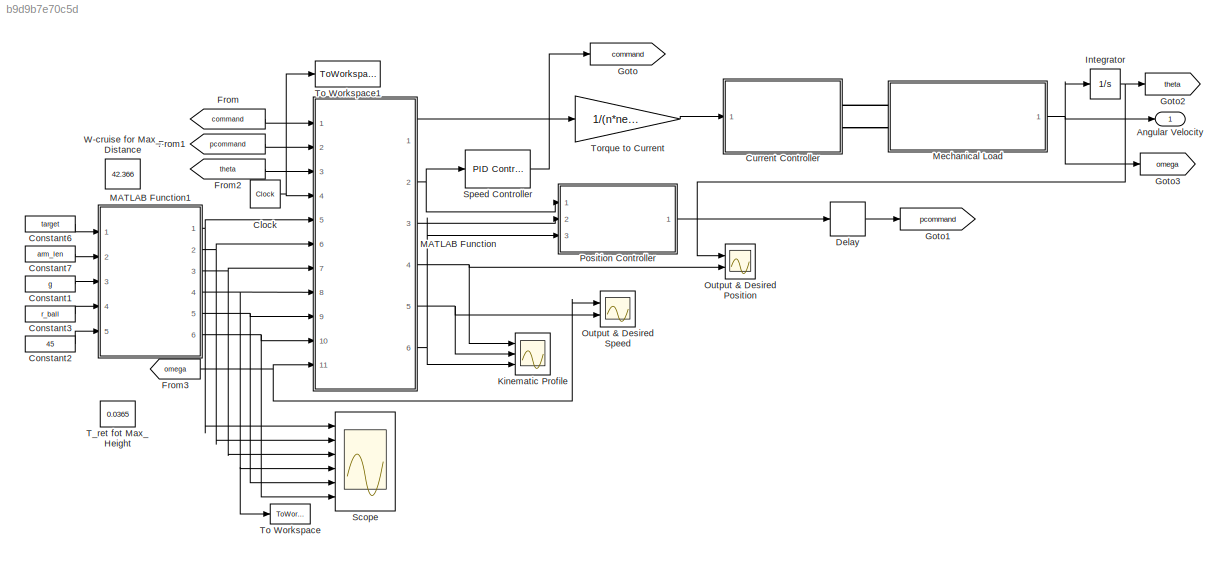
MODEL slx_b9d9b7e70c5d
KIND model
CONFIG AbsTol = auto
CONFIG EnableMultiTasking = off
CONFIG FixedStep = auto
CONFIG InitFcn = contact_stiffness = 2000;\ncontact_damping = 10;\n\n%% Parameters\n\n%------------------- Mechanical -------------------%\narm_len = 0.106;\nlaunch_ang = 45*(pi/180);\nth_start = 0;\nr_ball = 31.5/1000;\ng = -9.80665;\n\n%------------------- Electrical -------------------%\nR = 0.194;\nL = 0.097*1e-3;\nK_m = 1/24.48;\nV_max = 24;\nneta = 0.70;\nn = 6.5;\nf_s = 4000;\nNL_speed = 1200;\nR_speed = 1050;\nR_power = 240;\nNL...<+100ch>
CONFIG MaxStep = auto
CONFIG MinStep = auto
CONFIG RelTol = auto
CONFIG SampleTimeConstraint = Unconstrained
CONFIG SolverName = ode15s
CONFIG StartTime = 0.0
CONFIG StopTime = 0.09
WORKSPACE source: external: MATLAB File  (data not in archive)
BLOCK [Outport] Angular Velocity
BLOCK [Clock] Clock
BLOCK [Constant] Constant1
  Value = g
BLOCK [Constant] Constant2
  Value = 45
BLOCK [Constant] Constant3
  Value = r_ball
BLOCK [Constant] Constant6
  Value = target
BLOCK [Constant] Constant7
  Value = arm_len
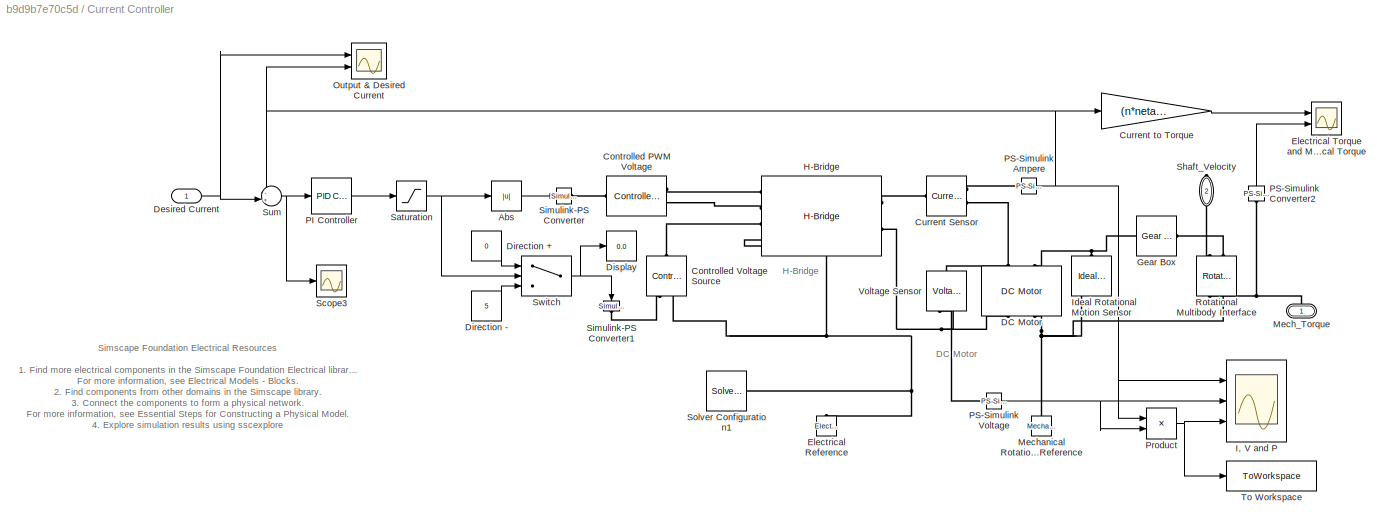
BLOCK [SubSystem] Current Controller
  NameLocation = top
  Ports = [1, 0, 0, 0, 0, 0, 2]
  RequestExecContextInheritance = off
BLOCK [Abs] Current Controller/Abs
  SaturateOnIntegerOverflow = off
BLOCK [Reference] Current Controller/Controlled PWM Voltage  REF=ee_lib/Integrated Circuits/Controlled PWM
Voltage
  Ports = [0, 0, 0, 0, 0, 1, 2]
  SourceBlock = ee_lib/Integrated Circuits/Controlled PWM\nVoltage
  SourceProductBaseCode = PS
  SourceType = Controlled PWM\nVoltage
BLOCK [Reference] Current Controller/Controlled Voltage Source  REF=fl_lib/Electrical/Electrical Sources/Controlled Voltage
Source
  NameLocation = right
  Ports = [0, 0, 0, 0, 0, 1, 2]
  SourceBlock = fl_lib/Electrical/Electrical Sources/Controlled Voltage\nSource
  SourceProductBaseCode = SS
  SourceType = Controlled Voltage\nSource
BLOCK [Reference] Current Controller/Current Sensor  REF=fl_lib/Electrical/Electrical Sensors/Current Sensor
  Ports = [0, 0, 0, 0, 0, 1, 2]
  SourceBlock = fl_lib/Electrical/Electrical Sensors/Current Sensor
  SourceProductBaseCode = SS
  SourceType = Current Sensor
BLOCK [Gain] Current Controller/Current to Torque
  Gain = (n*neta*K_m)
BLOCK [Reference] Current Controller/DC Motor  REF=ee_lib/Electromechanical/Brushed Motors/DC Motor
  Ports = [0, 0, 0, 0, 0, 2, 2]
  SourceBlock = ee_lib/Electromechanical/Brushed Motors/DC Motor
  SourceProductBaseCode = PS
  SourceType = DC Motor
BLOCK [Inport] Current Controller/Desired Current 
BLOCK [Constant] Current Controller/Direction +
  Value = 0
BLOCK [Constant] Current Controller/Direction -
  Value = 5
BLOCK [Display] Current Controller/Display
  Decimation = 1
  Ports = [1]
BLOCK [Reference] Current Controller/Electrical Reference  REF=fl_lib/Electrical/Electrical Elements/Electrical Reference
  Ports = [0, 0, 0, 0, 0, 1]
  SourceBlock = fl_lib/Electrical/Electrical Elements/Electrical Reference
  SourceProductBaseCode = SS
  SourceType = Electrical Reference
BLOCK [Scope] Current Controller/Electrical Torque and Mechanical Torque
  Floating = off
  NumInputPorts = 2
  Ports = [2]
  ScopeSpecificationString = Simulink.scopes.TimeScopeBlockCfg('CurrentConfiguration', extmgr.ConfigurationSet(extmgr.Configuration('Core','General UI',true),extmgr.Configuration('Core','Source UI',true),extmgr.Configuration('Sources','WiredSimulink',true,'DataLoggingVariableName','ScopeData4'),extmgr.Configuration('Visuals','Time Domain',true,'SerializedDisplays',{struct('MinYLimReal','-0.55886','MaxYLimReal','5.02972','YLab...<+1601ch>
BLOCK [Reference] Current Controller/Gear Box  REF=fl_lib/Mechanical/Mechanisms/Gear Box
  Ports = [0, 0, 0, 0, 0, 1, 1]
  SourceBlock = fl_lib/Mechanical/Mechanisms/Gear Box
  SourceProductBaseCode = SS
  SourceType = Gear Box
BLOCK [Reference] Current Controller/H-Bridge  REF=ee_lib/Semiconductors &
Converters/Converters/H-Bridge
  Ports = [0, 0, 0, 0, 0, 4, 2]
  SourceBlock = ee_lib/Semiconductors &\nConverters/Converters/H-Bridge
  SourceProductBaseCode = PS
  SourceType = H-Bridge
BLOCK [Scope] Current Controller/I, V and P
  Floating = off
  NumInputPorts = 3
  Ports = [3]
  ScopeSpecificationString = Simulink.scopes.TimeScopeBlockCfg('CurrentConfiguration', extmgr.ConfigurationSet(extmgr.Configuration('Core','General UI',true,'FigureColor',[0.313725490196078 0.313725490196078 0.313725490196078]),extmgr.Configuration('Core','Source UI',true),extmgr.Configuration('Sources','WiredSimulink',true,'DataLoggingVariableName','ScopeData3'),extmgr.Configuration('Visuals','Time Domain',true,'SerializedDi...<+2954ch>
BLOCK [Reference] Current Controller/Ideal Rotational Motion Sensor  REF=fl_lib/Mechanical/Mechanical Sensors/Ideal Rotational
Motion Sensor
  NameLocation = left
  Ports = [0, 0, 0, 0, 0, 1, 3]
  SourceBlock = fl_lib/Mechanical/Mechanical Sensors/Ideal Rotational\nMotion Sensor
  SourceProductBaseCode = SS
  SourceType = Ideal Rotational\nMotion Sensor
BLOCK [PMIOPort] Current Controller/Mech_Torque
  Side = Right
BLOCK [Reference] Current Controller/Mechanical Rotational Reference  REF=fl_lib/Mechanical/Rotational Elements/Mechanical
Rotational Reference
  Ports = [0, 0, 0, 0, 0, 1]
  SourceBlock = fl_lib/Mechanical/Rotational Elements/Mechanical\nRotational Reference
  SourceProductBaseCode = SS
  SourceType = Mechanical\nRotational Reference
BLOCK [Scope] Current Controller/Output & Desired Current
  Floating = off
  NumInputPorts = 2
  Ports = [2]
  ScopeSpecificationString = Simulink.scopes.TimeScopeBlockCfg('CurrentConfiguration', extmgr.ConfigurationSet(extmgr.Configuration('Core','General UI',true),extmgr.Configuration('Core','Source UI',true),extmgr.Configuration('Sources','WiredSimulink',true,'DataLoggingVariableName','ScopeData1'),extmgr.Configuration('Visuals','Time Domain',true,'SerializedDisplays',{struct('MinYLimReal','-240218.67911','MaxYLimReal','330321.26...<+2874ch>
BLOCK [Reference] Current Controller/PI Controller  REF=pid_lib/PID Controller
  Ports = [1, 1]
  SourceBlock = pid_lib/PID Controller
  SourceProductBaseCode = SL
  SourceType = PID 1dof
BLOCK [Reference] Current Controller/PS-Simulink Ampere  REF=nesl_utility/PS-Simulink
Converter
  Ports = [0, 1, 0, 0, 0, 1]
  SourceBlock = nesl_utility/PS-Simulink\nConverter
  SourceProductBaseCode = PW,SS
  SourceType = PS-Simulink\nConverter
BLOCK [Reference] Current Controller/PS-Simulink Converter2  REF=nesl_utility/PS-Simulink
Converter
  NameLocation = right
  Ports = [0, 1, 0, 0, 0, 1]
  SourceBlock = nesl_utility/PS-Simulink\nConverter
  SourceProductBaseCode = PW,SS
  SourceType = PS-Simulink\nConverter
BLOCK [Reference] Current Controller/PS-Simulink Voltage  REF=nesl_utility/PS-Simulink
Converter
  Ports = [0, 1, 0, 0, 0, 1]
  SourceBlock = nesl_utility/PS-Simulink\nConverter
  SourceProductBaseCode = PW,SS
  SourceType = PS-Simulink\nConverter
BLOCK [Product] Current Controller/Product
  Ports = [2, 1]
BLOCK [Reference] Current Controller/Rotational Multibody Interface  REF=fl_lib/Mechanical/Multibody Interfaces/Rotational Multibody
Interface
  NameLocation = left
  Ports = [0, 0, 0, 0, 0, 2, 2]
  SourceBlock = fl_lib/Mechanical/Multibody Interfaces/Rotational Multibody\nInterface
  SourceProductBaseCode = SS
  SourceType = Rotational Multibody\nInterface
BLOCK [Saturate] Current Controller/Saturation
  LowerLimit = -V_max
  UpperLimit = V_max
BLOCK [Scope] Current Controller/Scope3
  Floating = off
  NumInputPorts = 1
  Ports = [1]
  ScopeSpecificationString = Simulink.scopes.TimeScopeBlockCfg('CurrentConfiguration', extmgr.ConfigurationSet(extmgr.Configuration('Core','General UI',true),extmgr.Configuration('Core','Source UI',true),extmgr.Configuration('Sources','WiredSimulink',true,'DataLoggingVariableName','ScopeData3'),extmgr.Configuration('Visuals','Time Domain',true,'SerializedDisplays',{struct('MinYLimReal','-2.47708','MaxYLimReal','2.21524','YLab...<+1406ch>
BLOCK [PMIOPort] Current Controller/Shaft_Velocity
  NameLocation = top
  Port = 2
  Side = Right
BLOCK [Reference] Current Controller/Simulink-PS Converter  REF=nesl_utility/Simulink-PS
Converter
  Ports = [1, 0, 0, 0, 0, 0, 1]
  SourceBlock = nesl_utility/Simulink-PS\nConverter
  SourceProductBaseCode = PW,SS
  SourceType = Simulink-PS\nConverter
BLOCK [Reference] Current Controller/Simulink-PS Converter1  REF=nesl_utility/Simulink-PS
Converter
  NameLocation = left
  Ports = [1, 0, 0, 0, 0, 0, 1]
  SourceBlock = nesl_utility/Simulink-PS\nConverter
  SourceProductBaseCode = PW,SS
  SourceType = Simulink-PS\nConverter
BLOCK [Reference] Current Controller/Solver Configuration1  REF=nesl_utility/Solver
Configuration
  Ports = [0, 0, 0, 0, 0, 0, 1]
  SourceBlock = nesl_utility/Solver\nConfiguration
  SourceProductBaseCode = PW,SS
  SourceType = Solver\nConfiguration
BLOCK [Sum] Current Controller/Sum
  Inputs = -+|
  NameLocation = top
  Ports = [2, 1]
BLOCK [Switch] Current Controller/Switch
  InputSameDT = off
  SaturateOnIntegerOverflow = off
BLOCK [ToWorkspace] Current Controller/To Workspace
  FixptAsFi = on
  MaxDataPoints = inf
  Ports = [1]
  SampleTime = -1
  VariableName = Power
BLOCK [Reference] Current Controller/Voltage Sensor  REF=fl_lib/Electrical/Electrical Sensors/Voltage Sensor
  NameLocation = left
  Ports = [0, 0, 0, 0, 0, 1, 2]
  SourceBlock = fl_lib/Electrical/Electrical Sensors/Voltage Sensor
  SourceProductBaseCode = SS
  SourceType = Voltage Sensor
BLOCK [Delay] Delay
  DelayLength = 1
  InputPortMap = u0
  Ports = [1, 1]
  SampleTime = 1/(1*f_s)
BLOCK [From] From
  GotoTag = command
BLOCK [From] From1
  GotoTag = pcommand
BLOCK [From] From2
  GotoTag = theta
BLOCK [From] From3
  GotoTag = omega
BLOCK [Goto] Goto
  GotoTag = command
BLOCK [Goto] Goto1
  GotoTag = pcommand
BLOCK [Goto] Goto2
  GotoTag = theta
BLOCK [Goto] Goto3
  GotoTag = omega
BLOCK [Integrator] Integrator
  Ports = [1, 1]
BLOCK [Scope] Kinematic Profile
  Floating = off
  NumInputPorts = 3
  Ports = [3]
  ScopeSpecificationString = Simulink.scopes.TimeScopeBlockCfg('CurrentConfiguration', extmgr.ConfigurationSet(extmgr.Configuration('Core','General UI',true),extmgr.Configuration('Core','Source UI',true),extmgr.Configuration('Sources','WiredSimulink',true,'DataLoggingVariableName','ScopeData5'),extmgr.Configuration('Visuals','Time Domain',true,'SerializedDisplays',{struct('MinYLimReal','-0.35883','MaxYLimReal','3.22947','YLab...<+4860ch>
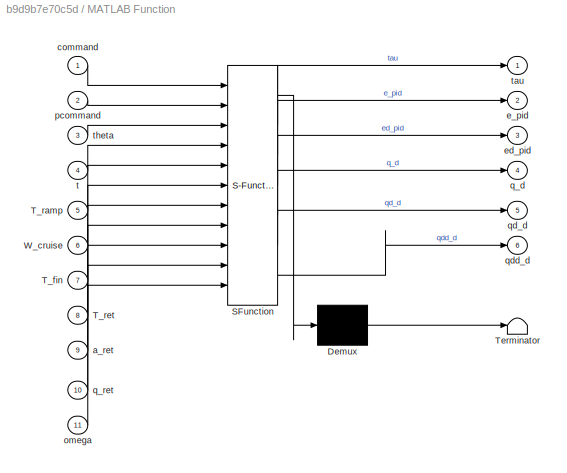
BLOCK [SubSystem] MATLAB Function
  ErrorFcn = Stateflow.Translate.translate
  PermitHierarchicalResolution = ExplicitOnly
  Ports = [11, 6]
  RequestExecContextInheritance = off
  SFBlockType = MATLAB Function
  TreatAsAtomicUnit = on
BLOCK [Demux] MATLAB Function/ Demux 
  Outputs = 1
  Ports = [1, 1]
BLOCK [S-Function] MATLAB Function/ SFunction 
  EnableBusSupport = on
  FunctionName = sf_sfun
  PortCounts = [11 7]
  Ports = [11, 7]
  SFcnIsStateOwnerBlock = off
  SFunctionDeploymentMode = off
  Tag = Stateflow S-Function 2
BLOCK [Terminator] MATLAB Function/ Terminator 
BLOCK [Inport] MATLAB Function/T_fin
  Port = 7
BLOCK [Inport] MATLAB Function/T_ramp
  Port = 5
BLOCK [Inport] MATLAB Function/T_ret
  Port = 8
BLOCK [Inport] MATLAB Function/W_cruise
  Port = 6
BLOCK [Inport] MATLAB Function/a_ret
  Port = 9
BLOCK [Inport] MATLAB Function/command
BLOCK [Outport] MATLAB Function/e_pid
  Port = 2
BLOCK [Outport] MATLAB Function/ed_pid
  Port = 3
BLOCK [Inport] MATLAB Function/omega
  Port = 11
BLOCK [Inport] MATLAB Function/pcommand
  Port = 2
BLOCK [Outport] MATLAB Function/q_d
  Port = 4
BLOCK [Inport] MATLAB Function/q_ret
  Port = 10
BLOCK [Outport] MATLAB Function/qd_d
  Port = 5
BLOCK [Outport] MATLAB Function/qdd_d
  Port = 6
BLOCK [Inport] MATLAB Function/t
  Port = 4
BLOCK [Outport] MATLAB Function/tau
BLOCK [Inport] MATLAB Function/theta
  Port = 3
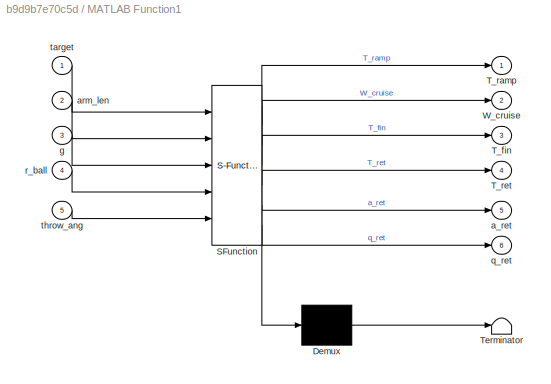
BLOCK [SubSystem] MATLAB Function1
  ErrorFcn = Stateflow.Translate.translate
  PermitHierarchicalResolution = ExplicitOnly
  Ports = [5, 6]
  RequestExecContextInheritance = off
  SFBlockType = MATLAB Function
  TreatAsAtomicUnit = on
BLOCK [Demux] MATLAB Function1/ Demux 
  Outputs = 1
  Ports = [1, 1]
BLOCK [S-Function] MATLAB Function1/ SFunction 
  EnableBusSupport = on
  FunctionName = sf_sfun
  PortCounts = [5 7]
  Ports = [5, 7]
  SFcnIsStateOwnerBlock = off
  SFunctionDeploymentMode = off
  Tag = Stateflow S-Function 1
BLOCK [Terminator] MATLAB Function1/ Terminator 
BLOCK [Outport] MATLAB Function1/T_fin
  Port = 3
BLOCK [Outport] MATLAB Function1/T_ramp
BLOCK [Outport] MATLAB Function1/T_ret
  Port = 4
BLOCK [Outport] MATLAB Function1/W_cruise
  Port = 2
BLOCK [Outport] MATLAB Function1/a_ret
  Port = 5
BLOCK [Inport] MATLAB Function1/arm_len
  Port = 2
BLOCK [Inport] MATLAB Function1/g
  Port = 3
BLOCK [Outport] MATLAB Function1/q_ret
  Port = 6
BLOCK [Inport] MATLAB Function1/r_ball
  Port = 4
BLOCK [Inport] MATLAB Function1/target
BLOCK [Inport] MATLAB Function1/throw_ang
  Port = 5
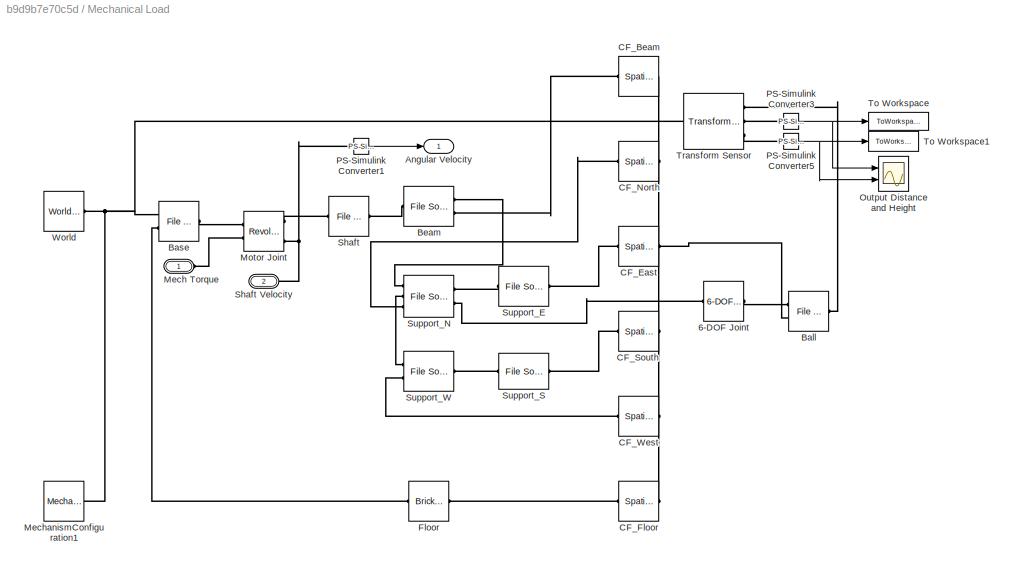
BLOCK [SubSystem] Mechanical Load
  NameLocation = top
  Ports = [0, 1, 0, 0, 0, 2]
  RequestExecContextInheritance = off
BLOCK [Reference] Mechanical Load/6-DOF Joint  REF=sm_lib/Joints/6-DOF Joint
  Ports = [0, 0, 0, 0, 0, 1, 1]
  SourceBlock = sm_lib/Joints/6-DOF Joint
  SourceProductBaseCode = MS
  SourceType = 6-DOF Joint
BLOCK [Outport] Mechanical Load/Angular Velocity
BLOCK [Reference] Mechanical Load/Ball  REF=sm_lib/Body Elements/File Solid
  Ports = [0, 0, 0, 0, 0, 2, 1]
  SourceBlock = sm_lib/Body Elements/File Solid
  SourceProductBaseCode = MS
  SourceType = File Solid
BLOCK [Reference] Mechanical Load/Base  REF=sm_lib/Body Elements/File Solid
  Ports = [0, 0, 0, 0, 0, 2, 1]
  SourceBlock = sm_lib/Body Elements/File Solid
  SourceProductBaseCode = MS
  SourceType = File Solid
BLOCK [Reference] Mechanical Load/Beam  REF=sm_lib/Body Elements/File Solid
  Ports = [0, 0, 0, 0, 0, 2, 1]
  SourceBlock = sm_lib/Body Elements/File Solid
  SourceProductBaseCode = MS
  SourceType = File Solid
BLOCK [Reference] Mechanical Load/CF_Beam  REF=sm_lib/Forces and
Torques/Spatial
Contact Force
  Ports = [0, 0, 0, 0, 0, 1, 1]
  SourceBlock = sm_lib/Forces and\nTorques/Spatial\nContact Force
  SourceProductBaseCode = MS
  SourceType = Spatial\nContact Force
BLOCK [Reference] Mechanical Load/CF_East  REF=sm_lib/Forces and
Torques/Spatial
Contact Force
  Ports = [0, 0, 0, 0, 0, 1, 1]
  SourceBlock = sm_lib/Forces and\nTorques/Spatial\nContact Force
  SourceProductBaseCode = MS
  SourceType = Spatial\nContact Force
BLOCK [Reference] Mechanical Load/CF_Floor  REF=sm_lib/Forces and
Torques/Spatial
Contact Force
  Ports = [0, 0, 0, 0, 0, 1, 1]
  SourceBlock = sm_lib/Forces and\nTorques/Spatial\nContact Force
  SourceProductBaseCode = MS
  SourceType = Spatial\nContact Force
BLOCK [Reference] Mechanical Load/CF_North  REF=sm_lib/Forces and
Torques/Spatial
Contact Force
  Ports = [0, 0, 0, 0, 0, 1, 1]
  SourceBlock = sm_lib/Forces and\nTorques/Spatial\nContact Force
  SourceProductBaseCode = MS
  SourceType = Spatial\nContact Force
BLOCK [Reference] Mechanical Load/CF_South  REF=sm_lib/Forces and
Torques/Spatial
Contact Force
  Ports = [0, 0, 0, 0, 0, 1, 1]
  SourceBlock = sm_lib/Forces and\nTorques/Spatial\nContact Force
  SourceProductBaseCode = MS
  SourceType = Spatial\nContact Force
BLOCK [Reference] Mechanical Load/CF_West  REF=sm_lib/Forces and
Torques/Spatial
Contact Force
  Ports = [0, 0, 0, 0, 0, 1, 1]
  SourceBlock = sm_lib/Forces and\nTorques/Spatial\nContact Force
  SourceProductBaseCode = MS
  SourceType = Spatial\nContact Force
BLOCK [Reference] Mechanical Load/Floor  REF=sm_lib/Body Elements/Brick Solid
  Ports = [0, 0, 0, 0, 0, 1, 1]
  SourceBlock = sm_lib/Body Elements/Brick Solid
  SourceProductBaseCode = MS
  SourceType = Brick Solid
BLOCK [PMIOPort] Mechanical Load/Mech Torque
  Side = Left
BLOCK [Reference] Mechanical Load/MechanismConfiguration1  REF=sm_lib/Utilities/Mechanism
Configuration
  Ports = [0, 0, 0, 0, 0, 0, 1]
  SourceBlock = sm_lib/Utilities/Mechanism\nConfiguration
  SourceProductBaseCode = MS
  SourceType = Mechanism\nConfiguration
BLOCK [Reference] Mechanical Load/Motor Joint  REF=sm_lib/Joints/Revolute Joint
  Ports = [0, 0, 0, 0, 0, 2, 3]
  SourceBlock = sm_lib/Joints/Revolute Joint
  SourceProductBaseCode = MS
  SourceType = Revolute Joint
BLOCK [Scope] Mechanical Load/Output Distance and Height
  Floating = off
  NumInputPorts = 2
  Ports = [2]
  ScopeSpecificationString = Simulink.scopes.TimeScopeBlockCfg('CurrentConfiguration', extmgr.ConfigurationSet(extmgr.Configuration('Core','General UI',true),extmgr.Configuration('Core','Source UI',true),extmgr.Configuration('Sources','WiredSimulink',true,'DataLoggingVariableName','ScopeData2'),extmgr.Configuration('Visuals','Time Domain',true,'SerializedDisplays',{struct('MinYLimReal','-0.07697','MaxYLimReal','0.3695','YLabe...<+2547ch>
BLOCK [Reference] Mechanical Load/PS-Simulink Converter1  REF=nesl_utility/PS-Simulink
Converter
  Ports = [0, 1, 0, 0, 0, 1]
  SourceBlock = nesl_utility/PS-Simulink\nConverter
  SourceProductBaseCode = PW,SS
  SourceType = PS-Simulink\nConverter
BLOCK [Reference] Mechanical Load/PS-Simulink Converter3  REF=nesl_utility/PS-Simulink
Converter
  Ports = [0, 1, 0, 0, 0, 1]
  SourceBlock = nesl_utility/PS-Simulink\nConverter
  SourceProductBaseCode = PW,SS
  SourceType = PS-Simulink\nConverter
BLOCK [Reference] Mechanical Load/PS-Simulink Converter5  REF=nesl_utility/PS-Simulink
Converter
  Ports = [0, 1, 0, 0, 0, 1]
  SourceBlock = nesl_utility/PS-Simulink\nConverter
  SourceProductBaseCode = PW,SS
  SourceType = PS-Simulink\nConverter
BLOCK [Reference] Mechanical Load/Shaft  REF=sm_lib/Body Elements/File Solid
  Ports = [0, 0, 0, 0, 0, 1, 1]
  SourceBlock = sm_lib/Body Elements/File Solid
  SourceProductBaseCode = MS
  SourceType = File Solid
BLOCK [PMIOPort] Mechanical Load/Shaft Velocity
  Port = 2
  Side = Left
BLOCK [Reference] Mechanical Load/Support_E  REF=sm_lib/Body Elements/File Solid
  Ports = [0, 0, 0, 0, 0, 1, 1]
  SourceBlock = sm_lib/Body Elements/File Solid
  SourceProductBaseCode = MS
  SourceType = File Solid
BLOCK [Reference] Mechanical Load/Support_N  REF=sm_lib/Body Elements/File Solid
  Ports = [0, 0, 0, 0, 0, 3, 2]
  SourceBlock = sm_lib/Body Elements/File Solid
  SourceProductBaseCode = MS
  SourceType = File Solid
BLOCK [Reference] Mechanical Load/Support_S  REF=sm_lib/Body Elements/File Solid
  Ports = [0, 0, 0, 0, 0, 1, 1]
  SourceBlock = sm_lib/Body Elements/File Solid
  SourceProductBaseCode = MS
  SourceType = File Solid
BLOCK [Reference] Mechanical Load/Support_W  REF=sm_lib/Body Elements/File Solid
  Ports = [0, 0, 0, 0, 0, 2, 1]
  SourceBlock = sm_lib/Body Elements/File Solid
  SourceProductBaseCode = MS
  SourceType = File Solid
BLOCK [ToWorkspace] Mechanical Load/To Workspace
  FixptAsFi = on
  MaxDataPoints = inf
  Ports = [1]
  SampleTime = -1
  VariableName = Distance
BLOCK [ToWorkspace] Mechanical Load/To Workspace1
  FixptAsFi = on
  MaxDataPoints = inf
  Ports = [1]
  SampleTime = -1
  VariableName = Height
BLOCK [Reference] Mechanical Load/Transform Sensor  REF=sm_lib/Frames and
Transforms/Transform
Sensor
  Ports = [0, 0, 0, 0, 0, 1, 3]
  SourceBlock = sm_lib/Frames and\nTransforms/Transform\nSensor
  SourceProductBaseCode = MS
  SourceType = Transform\nSensor
BLOCK [Reference] Mechanical Load/World  REF=sm_lib/Frames and
Transforms/World Frame
  Ports = [0, 0, 0, 0, 0, 0, 1]
  SourceBlock = sm_lib/Frames and\nTransforms/World Frame
  SourceProductBaseCode = MS
  SourceType = World Frame
BLOCK [Scope] Output & Desired Position
  Floating = off
  NumInputPorts = 2
  Ports = [2]
  ScopeSpecificationString = Simulink.scopes.TimeScopeBlockCfg('CurrentConfiguration', extmgr.ConfigurationSet(extmgr.Configuration('Core','General UI',true),extmgr.Configuration('Core','Source UI',true),extmgr.Configuration('Sources','WiredSimulink',true,'DataLoggingVariableName','ScopeData6'),extmgr.Configuration('Visuals','Time Domain',true,'SerializedDisplays',{struct('MinYLimReal','-1.95175','MaxYLimReal','1.7122','YLabe...<+2926ch>
BLOCK [Scope] Output & Desired Speed
  Floating = off
  NumInputPorts = 2
  Ports = [2]
  ScopeSpecificationString = Simulink.scopes.TimeScopeBlockCfg('CurrentConfiguration', extmgr.ConfigurationSet(extmgr.Configuration('Core','General UI',true),extmgr.Configuration('Core','Source UI',true),extmgr.Configuration('Sources','WiredSimulink',true,'DataLoggingVariableName','ScopeData7'),extmgr.Configuration('Visuals','Time Domain',true,'SerializedDisplays',{struct('MinYLimReal','-65.2157','MaxYLimReal','54.43184','YLa...<+2139ch>
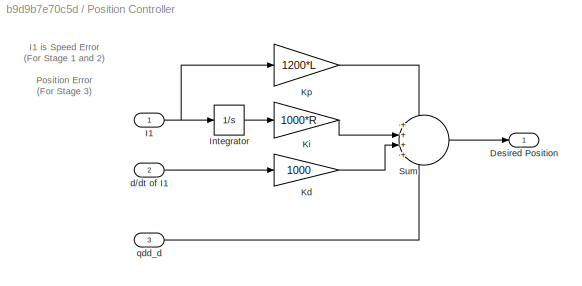
BLOCK [SubSystem] Position Controller 
  NameLocation = top
  Ports = [3, 1]
  RequestExecContextInheritance = off
BLOCK [Outport] Position Controller /Desired Position
BLOCK [Inport] Position Controller /I1
BLOCK [Integrator] Position Controller /Integrator
  Ports = [1, 1]
BLOCK [Gain] Position Controller /Kd
  Gain = 1000
BLOCK [Gain] Position Controller /Ki
  Gain = 1000*R
BLOCK [Gain] Position Controller /Kp
  Gain = 1200*L
BLOCK [Sum] Position Controller /Sum
  Inputs = ++++
  Ports = [4, 1]
BLOCK [Inport] Position Controller /d//dt of I1
  Port = 2
BLOCK [Inport] Position Controller /qdd_d
  Port = 3
BLOCK [Scope] Scope
  Floating = off
  NumInputPorts = 6
  Ports = [6]
  ScopeSpecificationString = Simulink.scopes.TimeScopeBlockCfg('CurrentConfiguration', extmgr.ConfigurationSet(extmgr.Configuration('Core','General UI',true),extmgr.Configuration('Core','Source UI',true),extmgr.Configuration('Sources','WiredSimulink',true,'DataLoggingVariableName','ScopeData1'),extmgr.Configuration('Visuals','Time Domain',true,'SerializedDisplays',{struct('MinYLimReal','0.02704','MaxYLimReal','0.04704','YLabe...<+5190ch>
BLOCK [Reference] Speed  Controller  REF=pid_lib/PID Controller
  NameLocation = top
  Ports = [1, 1]
  SourceBlock = pid_lib/PID Controller
  SourceProductBaseCode = SL
  SourceType = PID 1dof
BLOCK [Constant] T_ret fot Max_Height
  Value = 0.0365
BLOCK [ToWorkspace] To Workspace
  FixptAsFi = on
  MaxDataPoints = inf
  Ports = [1]
  SampleTime = -1
  Save2DSignal = 2-D array (concatenate along first dimension)
  VariableName = T_fin
BLOCK [ToWorkspace] To Workspace1
  FixptAsFi = on
  MaxDataPoints = inf
  Ports = [1]
  SampleTime = -1
  VariableName = time
BLOCK [Gain] Torque to Current
  Gain = 1/(n*neta*K_m)
BLOCK [Constant] W-cruise for Max_Distance
  Value = 42.366
ANNOTATION Current Controller: DC Motor
ANNOTATION Current Controller: 1. Find more electrical components in the Simscape Foundation Electrical library . For more information, see Electrical Models - Blocks . 2. Find components from other domains in the Simscape library . 3. Connect the components to form a physical network. For more information, see Essential Steps for Constructing a Physical Model . 4. Explore simulation results using sscexplore
ANNOTATION Current Controller: H-Bridge
ANNOTATION Current Controller: Simscape Foundation Electrical Resources
ANNOTATION Position Controller : I1 is Speed Error (For Stage 1 and 2) Position Error (For Stage 3)
NET Clock:1 -> MATLAB Function:4, To Workspace1:1
LINE Constant1:1 -> MATLAB Function1:3
LINE Constant2:1 -> MATLAB Function1:5
LINE Constant3:1 -> MATLAB Function1:4
LINE Constant6:1 -> MATLAB Function1:1
LINE Constant7:1 -> MATLAB Function1:2
LINE Current Controller/Abs:1 -> Current Controller/Simulink-PS Converter:1
LINE Current Controller/Current to Torque:1 -> Current Controller/Electrical Torque and Mechanical Torque:1
NET Current Controller/Desired Current :1 -> Current Controller/Output & Desired Current:1, Current Controller/Sum:2
LINE Current Controller/Direction +:1 -> Current Controller/Switch:1
LINE Current Controller/Direction -:1 -> Current Controller/Switch:3
LINE Current Controller/PI Controller:1 -> Current Controller/Saturation:1
NET Current Controller/PS-Simulink Ampere:1 -> Current Controller/Current to Torque:1, Current Controller/I, V and P:1, Current Controller/Output & Desired Current:2, Current Controller/Product:1, Current Controller/Sum:1
LINE Current Controller/PS-Simulink Converter2:1 -> Current Controller/Electrical Torque and Mechanical Torque:2
NET Current Controller/PS-Simulink Voltage:1 -> Current Controller/I, V and P:2, Current Controller/Product:2
NET Current Controller/Product:1 -> Current Controller/I, V and P:3, Current Controller/To Workspace:1
NET Current Controller/Saturation:1 -> Current Controller/Abs:1, Current Controller/Switch:2
NET Current Controller/Sum:1 -> Current Controller/PI Controller:1, Current Controller/Scope3:1
NET Current Controller/Switch:1 -> Current Controller/Display:1, Current Controller/Simulink-PS Converter1:1
LINE Delay:1 -> Goto1:1
LINE From1:1 -> MATLAB Function:2
LINE From2:1 -> MATLAB Function:3
NET From3:1 -> MATLAB Function:11, Output & Desired Speed:1
LINE From:1 -> MATLAB Function:1
NET Integrator:1 -> Goto2:1, Output & Desired Position:1
NET MATLAB Function1:1 -> MATLAB Function:5, Scope:1
NET MATLAB Function1:2 -> MATLAB Function:6, Scope:2
NET MATLAB Function1:3 -> MATLAB Function:7, Scope:3
NET MATLAB Function1:4 -> MATLAB Function:8, Scope:4, To Workspace:1
NET MATLAB Function1:5 -> MATLAB Function:9, Scope:5
NET MATLAB Function1:6 -> MATLAB Function:10, Scope:6
LINE MATLAB Function:1 -> Torque to Current:1
NET MATLAB Function:2 -> Position Controller :1, Speed  Controller:1
LINE MATLAB Function:3 -> Position Controller :2
NET MATLAB Function:4 -> Kinematic Profile:1, Output & Desired Position:2
NET MATLAB Function:5 -> Kinematic Profile:2, Output & Desired Speed:2
NET MATLAB Function:6 -> Kinematic Profile:3, Position Controller :3
LINE Mechanical Load/PS-Simulink Converter1:1 -> Mechanical Load/Angular Velocity:1
NET Mechanical Load/PS-Simulink Converter3:1 -> Mechanical Load/Output Distance and Height:1, Mechanical Load/To Workspace:1
NET Mechanical Load/PS-Simulink Converter5:1 -> Mechanical Load/Output Distance and Height:2, Mechanical Load/To Workspace1:1
NET Mechanical Load:1 -> Angular Velocity:1, Goto3:1, Integrator:1
NET Position Controller /I1:1 -> Position Controller /Integrator:1, Position Controller /Kp:1
LINE Position Controller /Integrator:1 -> Position Controller /Ki:1
LINE Position Controller /Kd:1 -> Position Controller /Sum:3
LINE Position Controller /Ki:1 -> Position Controller /Sum:2
LINE Position Controller /Kp:1 -> Position Controller /Sum:1
LINE Position Controller /Sum:1 -> Position Controller /Desired Position:1
LINE Position Controller /d//dt of I1:1 -> Position Controller /Kd:1
LINE Position Controller /qdd_d:1 -> Position Controller /Sum:4
LINE Position Controller :1 -> Delay:1
LINE Speed  Controller:1 -> Goto:1
LINE Torque to Current:1 -> Current Controller:1
PLINE Current Controller/Controlled PWM Voltage:LConn1 -- Current Controller/Simulink-PS Converter:RConn1
PLINE Current Controller/Controlled PWM Voltage:RConn1 -- Current Controller/H-Bridge:LConn1
PNET net1: Current Controller/Controlled PWM Voltage:RConn2 -- Current Controller/Controlled Voltage Source:RConn2 -- Current Controller/DC Motor:RConn1 -- Current Controller/Electrical Reference:LConn1 -- Current Controller/H-Bridge:LConn2 -- Current Controller/H-Bridge:LConn4 -- Current Controller/H-Bridge:RConn2 -- Current Controller/Solver Configuration1:RConn1 -- Current Controller/Voltage Sensor:RConn2
PLINE Current Controller/Controlled Voltage Source:LConn1 -- Current Controller/H-Bridge:LConn3
PLINE Current Controller/Controlled Voltage Source:RConn1 -- Current Controller/Simulink-PS Converter1:RConn1
PLINE Current Controller/Current Sensor:LConn1 -- Current Controller/H-Bridge:RConn1
PLINE Current Controller/Current Sensor:RConn1 -- Current Controller/PS-Simulink Ampere:LConn1
PNET net2: Current Controller/Current Sensor:RConn2 -- Current Controller/DC Motor:LConn1 -- Current Controller/Voltage Sensor:LConn1
PNET net3: Current Controller/DC Motor:LConn2 -- Current Controller/Gear Box:LConn1 -- Current Controller/Ideal Rotational Motion Sensor:LConn1
PNET net4: Current Controller/DC Motor:RConn2 -- Current Controller/Ideal Rotational Motion Sensor:RConn1 -- Current Controller/Mechanical Rotational Reference:LConn1 -- Current Controller/Rotational Multibody Interface:LConn2
PLINE Current Controller/Gear Box:RConn1 -- Current Controller/Rotational Multibody Interface:RConn2
PNET net5: Current Controller/Mech_Torque:RConn1 -- Current Controller/PS-Simulink Converter2:LConn1 -- Current Controller/Rotational Multibody Interface:LConn1
PLINE Current Controller/PS-Simulink Voltage:LConn1 -- Current Controller/Voltage Sensor:RConn1
PLINE Current Controller/Rotational Multibody Interface:RConn1 -- Current Controller/Shaft_Velocity:RConn1
PLINE Current Controller:RConn1 -- Mechanical Load:LConn1
PLINE Current Controller:RConn2 -- Mechanical Load:LConn2
PLINE Mechanical Load/6-DOF Joint:LConn1 -- Mechanical Load/Support_N:RConn2
PLINE Mechanical Load/6-DOF Joint:RConn1 -- Mechanical Load/Ball:LConn1
PNET net6: Mechanical Load/Ball:LConn2 -- Mechanical Load/CF_Beam:RConn1 -- Mechanical Load/CF_East:RConn1 -- Mechanical Load/CF_Floor:RConn1 -- Mechanical Load/CF_North:RConn1 -- Mechanical Load/CF_South:RConn1 -- Mechanical Load/CF_West:RConn1
PLINE Mechanical Load/Ball:RConn1 -- Mechanical Load/Transform Sensor:RConn1
PNET net7: Mechanical Load/Base:LConn1 -- Mechanical Load/MechanismConfiguration1:RConn1 -- Mechanical Load/Transform Sensor:LConn1 -- Mechanical Load/World:RConn1
PLINE Mechanical Load/Base:LConn2 -- Mechanical Load/Floor:LConn1
PLINE Mechanical Load/Base:RConn1 -- Mechanical Load/Motor Joint:LConn1
PLINE Mechanical Load/Beam:LConn1 -- Mechanical Load/Support_N:LConn1
PLINE Mechanical Load/Beam:LConn2 -- Mechanical Load/CF_Beam:LConn1
PLINE Mechanical Load/Beam:RConn1 -- Mechanical Load/Shaft:RConn1
PLINE Mechanical Load/CF_East:LConn1 -- Mechanical Load/Support_E:RConn1
PLINE Mechanical Load/CF_Floor:LConn1 -- Mechanical Load/Floor:RConn1
PLINE Mechanical Load/CF_North:LConn1 -- Mechanical Load/Support_N:LConn3
PLINE Mechanical Load/CF_South:LConn1 -- Mechanical Load/Support_S:RConn1
PLINE Mechanical Load/CF_West:LConn1 -- Mechanical Load/Support_W:LConn2
PLINE Mechanical Load/Mech Torque:RConn1 -- Mechanical Load/Motor Joint:LConn2
PLINE Mechanical Load/Motor Joint:RConn1 -- Mechanical Load/Shaft:LConn1
PNET net8: Mechanical Load/Motor Joint:RConn3 -- Mechanical Load/PS-Simulink Converter1:LConn1 -- Mechanical Load/Shaft Velocity:RConn1
PLINE Mechanical Load/PS-Simulink Converter3:LConn1 -- Mechanical Load/Transform Sensor:RConn2
PLINE Mechanical Load/PS-Simulink Converter5:LConn1 -- Mechanical Load/Transform Sensor:RConn3
PLINE Mechanical Load/Support_E:LConn1 -- Mechanical Load/Support_N:RConn1
PLINE Mechanical Load/Support_N:LConn2 -- Mechanical Load/Support_W:LConn1
PLINE Mechanical Load/Support_S:LConn1 -- Mechanical Load/Support_W:RConn1
note: NET lines group one-source signal fan-out (src -> all destinations, sorted); 1:1 wires keep LINE; PNET lines group multi-terminal physical nets as a canonical sorted terminal list (undirected conserving connections); 2-terminal nets keep the pairwise PLINE form
CHART MATLAB Function1 states=1 transitions=1
  STATE_LABEL 'eML_blk_kernel()'
  STATE_LABEL 'SCRIPT:\nfunction[T_ramp, W_cruise, T_fin, T_ret, a_ret, q_ret] = fcn (target, arm_len, g, r_ball, throw_ang)\n% Projectile Motion\nthrow_ang = throw_ang*(pi/180);\nalpha = atan(r_ball/arm_len);\nth = throw_ang - alpha;\n\nh = 0.15;\ny = sin(throw_ang)*arm_len;\nY = y + h;\nl = cos(throw_ang)*arm_len;\nX = target + l;\n\nlin_vel = X/((cos(th))*sqrt(-(Y+tan(th)*X)*(2/g)));\ne=correction_factor(target);\n\n% Output...<+175ch>'
CHART MATLAB Function states=1 transitions=1
  STATE_LABEL 'eML_blk_kernel()'
  STATE_LABEL 'SCRIPT:\nfunction [tau, e_pid, ed_pid, q_d, qd_d, qdd_d] = fcn(command, pcommand, theta, t, T_ramp, W_cruise, T_fin, T_ret, a_ret, q_ret, omega)\n    \n    if (t <= T_ramp)\n        q_d = 0.5 * W_cruise * t^2/T_ramp;\n        qd_d = W_cruise * t/T_ramp;\n        qdd_d = W_cruise/T_ramp;\n        e_pid = qd_d - omega;\n        tau = command;\n        q_0 = []; q_1 = []; q_2 = []; q_3 = []; ed_pid = 0;\n\n    ...<+1256ch>'
CHART  states=0 transitions=0
CHART  states=0 transitions=0
